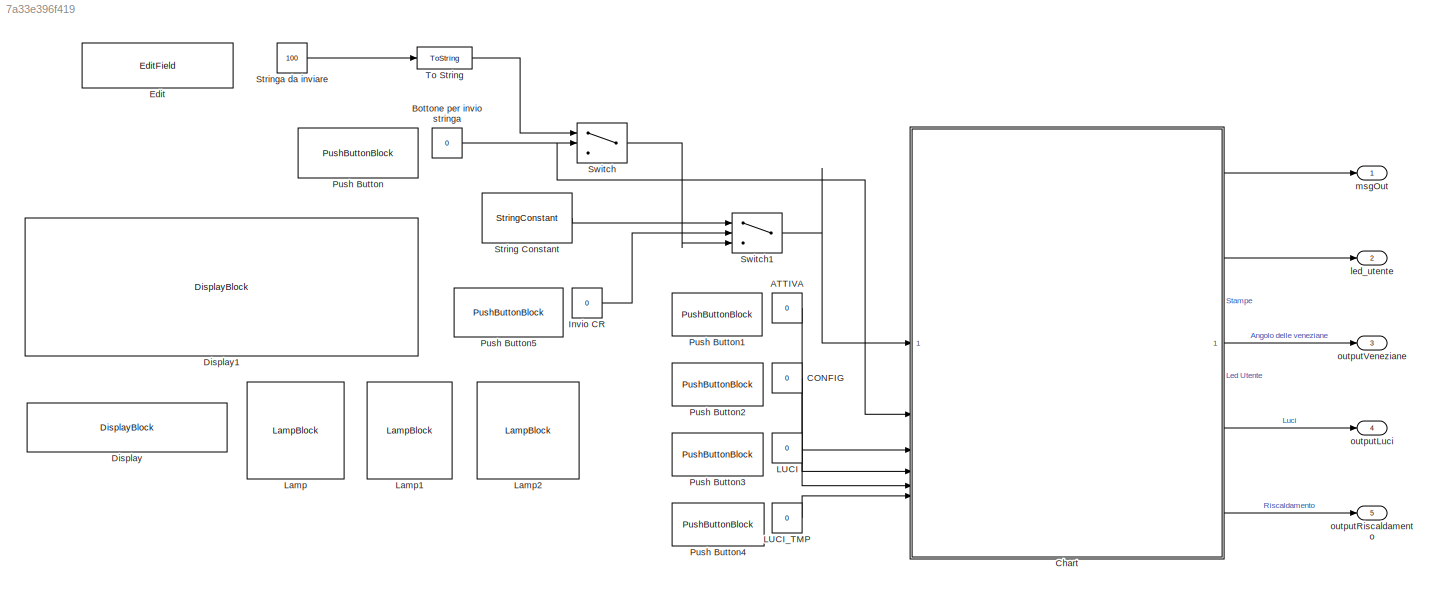
MODEL slx_7a33e396f419
KIND model
CONFIG AbsTol = auto
CONFIG EnableMultiTasking = on
CONFIG FixedStep = 0.5
CONFIG MaxStep = auto
CONFIG MinStep = auto
CONFIG RelTol = 1e-3
CONFIG SampleTimeConstraint = Unconstrained
CONFIG SolverName = FixedStepDiscrete
CONFIG StartTime = 0.0
CONFIG StopTime = 300
BLOCK [Constant] ATTIVA
  Value = 0
BLOCK [Constant] Bottone per invio stringa
  Value = 0
BLOCK [Constant] CONFIG
  Value = 0
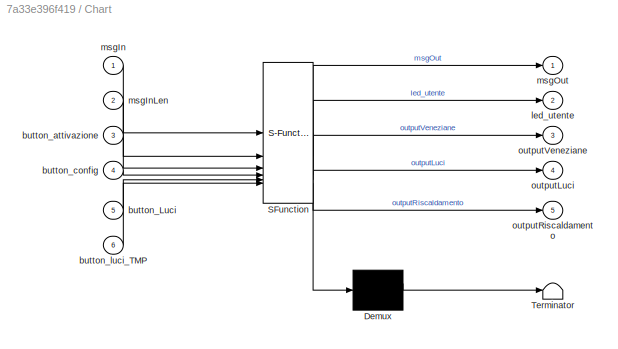
BLOCK [SubSystem] Chart
  ErrorFcn = Stateflow.Translate.translate
  PermitHierarchicalResolution = ExplicitOnly
  SFBlockType = Chart
  TreatAsAtomicUnit = on
BLOCK [Demux] Chart/ Demux 
  Outputs = 1
BLOCK [S-Function] Chart/ SFunction 
  EnableBusSupport = on
  FunctionName = sf_sfun
  PortCounts = [6 6]
  SFcnIsStateOwnerBlock = off
  SFunctionDeploymentMode = off
  Tag = Stateflow S-Function 3
BLOCK [Terminator] Chart/ Terminator 
BLOCK [Inport] Chart/button_Luci
  Port = 5
BLOCK [Inport] Chart/button_attivazione
  Port = 3
BLOCK [Inport] Chart/button_config
  Port = 4
BLOCK [Inport] Chart/button_luci_TMP
  Port = 6
BLOCK [Outport] Chart/led_utente
  Port = 2
BLOCK [Inport] Chart/msgIn
BLOCK [Inport] Chart/msgInLen
  Port = 2
BLOCK [Outport] Chart/msgOut
BLOCK [Outport] Chart/outputLuci
  Port = 4
BLOCK [Outport] Chart/outputRiscaldamento
  Port = 5
BLOCK [Outport] Chart/outputVeneziane
  Port = 3
BLOCK [DisplayBlock] Display
  LabelPosition = Bottom
  Transparency = 1
BLOCK [DisplayBlock] Display1
  Alignment = Left
  LabelPosition = Bottom
  Transparency = 1
BLOCK [EditField] Edit
  Alignment = Center
  LabelPosition = Bottom
  ShowInitialText = on
BLOCK [Constant] Invio CR
  Value = 0
BLOCK [Constant] LUCI
  Value = 0
BLOCK [Constant] LUCI_TMP
  Value = 0
BLOCK [LampBlock] Lamp
  CustomIcon = data:image/svg+xml;base64,CjwhLS0gR2VuZXJhdG9yOiB2aXNpb25jb3J0ZXggVlRyYWNlciAwLjYuNCAtLT4KPHN2ZyB2ZXJzaW9uPSIxLjEiIHhtbG5zPSJodHRwOi8vd3d3LnczLm9yZy8yMDAwL3N2ZyIgdmlld0JveD0iMCAwIDUxMiA1MTIiIHByZXNlcnZlQXNwZWN0UmF0aW89InhNaWRZTWlkIG1lZXQiPgo8cGF0aCBkPSJNMCAwIEMwLjk2NyAwLjAwMiAxLjkzNSAwLjAwNCAyLjkzMSAwLjAwNiBDMTcuMjY0IDAuMDUxIDMxLjIxIDAuNTYgNDUuMzEyIDMuMzEyIEM0Ni42NTggMy41NTQgNDYuNjU4IDMuNTU0IDQ4Lj...<+8754ch>
  Icon = Custom
  LabelPosition = Bottom
BLOCK [LampBlock] Lamp1
  CustomIcon = data:image/svg+xml;base64,CjwhLS0gR2VuZXJhdG9yOiB2aXNpb25jb3J0ZXggVlRyYWNlciAwLjYuNCAtLT4KPHN2ZyB2ZXJzaW9uPSIxLjEiIHhtbG5zPSJodHRwOi8vd3d3LnczLm9yZy8yMDAwL3N2ZyIgdmlld0JveD0iMCAwIDUxMiA1MTIiIHByZXNlcnZlQXNwZWN0UmF0aW89InhNaWRZTWlkIG1lZXQiPgo8cGF0aCBkPSJNMCAwIEMwLjY2NSAwLjE4MiAxLjMzMSAwLjM2NCAyLjAxNyAwLjU1MSBDMjQuMjc0IDYuNzU2IDQzLjIzNiAxOS40MzkgNjAgMzUgQzYwLjY1NiAzNS41NzkgNjEuMzEyIDM2LjE1OCA2MS45OD...<+12118ch>
  Icon = Custom
  LabelPosition = Bottom
BLOCK [LampBlock] Lamp2
  CustomIcon = data:image/svg+xml;base64,CjwhLS0gR2VuZXJhdG9yOiB2aXNpb25jb3J0ZXggVlRyYWNlciAwLjYuNCAtLT4KPHN2ZyB2ZXJzaW9uPSIxLjEiIHhtbG5zPSJodHRwOi8vd3d3LnczLm9yZy8yMDAwL3N2ZyIgdmlld0JveD0iMCAwIDUxMiA1MTIiIHByZXNlcnZlQXNwZWN0UmF0aW89InhNaWRZTWlkIG1lZXQiPgo8cGF0aCBkPSJNMCAwIEMxLjM2NCAwLjk4NiAyLjcyIDEuOTg1IDQuMDYyIDMgQzQuOTQ5IDMuNjE5IDUuODM2IDQuMjM3IDYuNzUgNC44NzUgQzE0LjY1MyAxMi4xMzcgMjEuMzQ5IDIzLjMwNiAyMi4yNCAzNC...<+7534ch>
  Icon = Custom
  LabelPosition = Bottom
BLOCK [PushButtonBlock] Push Button
  ButtonText = Invio Stringa
  OffValue = 0.000000
BLOCK [PushButtonBlock] Push Button1
  ButtonText = ATTIVA
  OffValue = 0.000000
BLOCK [PushButtonBlock] Push Button2
  ButtonText = CONFIG
  OffValue = 0.000000
BLOCK [PushButtonBlock] Push Button3
  ButtonText = LUCI
  OffValue = 0.000000
BLOCK [PushButtonBlock] Push Button4
  ButtonText = LUCI_TMP
  OffValue = 0.000000
BLOCK [PushButtonBlock] Push Button5
  ButtonText = Pressione Enter
  OffValue = 0.000000
BLOCK [StringConstant] String Constant
  String = sprintf('\r')
BLOCK [Constant] Stringa da inviare
  SampleTime = Inf
  Value = 100
BLOCK [Switch] Switch
  Criteria = u2 > Threshold
  InputSameDT = off
  SaturateOnIntegerOverflow = off
  Threshold = 0.5
BLOCK [Switch] Switch1
  Criteria = u2 > Threshold
  InputSameDT = off
  SaturateOnIntegerOverflow = off
  Threshold = 0.5
BLOCK [ToString] To String
BLOCK [Outport] led_utente
  Port = 2
BLOCK [Outport] msgOut
BLOCK [Outport] outputLuci
  Port = 4
BLOCK [Outport] outputRiscaldamento
  Port = 5
BLOCK [Outport] outputVeneziane
  Port = 3
LINE ATTIVA:1 -> Chart:3
NET Bottone per invio stringa:1 -> Chart:2, Switch:2
LINE CONFIG:1 -> Chart:4
LINE Chart:1 -> msgOut:1
LINE Chart:2 -> led_utente:1
LINE Chart:3 -> outputVeneziane:1
LINE Chart:4 -> outputLuci:1
LINE Chart:5 -> outputRiscaldamento:1
LINE Invio CR:1 -> Switch1:2
LINE LUCI:1 -> Chart:5
LINE LUCI_TMP:1 -> Chart:6
LINE String Constant:1 -> Switch1:1
LINE Stringa da inviare:1 -> To String:1
LINE Switch1:1 -> Chart:1
LINE Switch:1 -> Switch1:3
LINE To String:1 -> Switch:1
note: NET lines group one-source signal fan-out (src -> all destinations, sorted); 1:1 wires keep LINE
CHART Chart states=64 transitions=106
  STATE_LABEL 'outString = msgConfigurazione'
  STATE_LABEL 'SCRIPT:\nfunction outString = msgConfigurazione\n%clrscr = sprintf("\\033[0;0H\\033[2J"); Solo per UART\ncrlf = sprintf(\'<path>');\n\noutString = "Configurazione:" + crlf + ...\n    "1. Regolazione veneziane." + crlf + ...\n    "2. Accensione luci." + crlf + ...\n    "3. Configurazione riscaldamento." + crlf + ...\n    "4. Salva." + crlf + ...;\n    "5. Esci." + crlf;\nend\n\n\n \n'
  STATE_LABEL 'outString = msgRegolazioneVeneziane'
  STATE_LABEL 'SCRIPT:\nfunction outString = msgRegolazioneVeneziane\n%clrscr = sprintf("\\033[0;0H\\033[2J"); Solo per UART\ncrlf = sprintf(\'<path>');\n\noutString = "Regolazione Veneziane." + crlf + ...\n   "Inserire un valore da 0 a 180." + crlf + ...\n   "(Risoluzione di 20)" + crlf;\nend\n\n\n \n'
  STATE_LABEL 'outString = msgAccensioneLuci'
  STATE_LABEL 'SCRIPT:\nfunction outString = msgAccensioneLuci\n%clrscr = sprintf("\\033[0;0H\\033[2J"); Solo per UART\ncrlf = sprintf(\'<path>');\n\noutString = "Configurazione luci." + crlf + ...\n    "Inserire:" + crlf + ...\n    "1. Luci accese." + crlf + ...\n    "2. Luci spente." + crlf;\nend\n\n\n \n'
  STATE_LABEL 'outString = msgConfigurazioneRiscaldamento'
  STATE_LABEL 'SCRIPT:\nfunction outString = msgConfigurazioneRiscaldamento\n%clrscr = sprintf("\\033[0;0H\\033[2J"); Solo per UART\ncrlf = sprintf(\'<path>');\n\noutString = "Configurazione riscaldamento." + crlf + ...\n    "Inserire un valore compreso tra 16 e 30." + crlf + ...\n    "(Risoluzione di 1)" + crlf;\nend\n\n\n \n'
  STATE_LABEL 'outString = msgErroreUscita'
  STATE_LABEL 'SCRIPT:\nfunction outString = msgErroreUscita\n%clrscr = sprintf("\\033[0;0H\\033[2J"); Solo per UART\ncrlf = sprintf(\'<path>');\n\noutString = "Configurazione valida non presente." + crlf + ...\n            "Si prega di inserirne una." + crlf;\nend\n\n\n \n'
  STATE_LABEL 'outString = msgAggiornamentoStato(val_riscaldamento, val_veneziane, val_luci, val_temporizzazione)'
  STATE_LABEL 'SCRIPT:\nfunction outString = msgAggiornamentoStato(val_riscaldamento, val_veneziane, val_luci, val_temporizzazione)\n%clrscr = sprintf("\\033[0;0H\\033[2J"); Solo per UART\n    crlf = sprintf(\'<path>');\n\n    str_veneziane = "Veneziane impostate a " + sprintf(\'%.1f\', val_veneziane) + " gradi.";\n\n    str_luci = "";\n    if val_luci == 1 || val_luci == 3\n        str_luci = "Luci accese.";\n    else\n        s...<+552ch>'
  STATE_LABEL 'outString = msgUscita'
  STATE_LABEL 'SCRIPT:\nfunction outString = msgUscita\n%clrscr = sprintf("\\033[0;0H\\033[2J"); Solo per UART\ncrlf = sprintf(\'<path>');\n\noutString = "Uscita in corso." + crlf + ...\n            "Verranno ripristinate le configurazioni precedenti." + crlf;\nend\n\n\n \n'
  STATE_LABEL 'outString = msgErrore'
  STATE_LABEL 'SCRIPT:\nfunction outString = msgErrore\n%clrscr = sprintf("\\033[0;0H\\033[2J"); Solo per UART\ncrlf = sprintf(\'<path>');\n\noutString = "Valore inserito non valido." + crlf;\nend\n\n\n \n'
  STATE_LABEL 'outString = msgSalvataggioConfigurazione'
  STATE_LABEL 'SCRIPT:\nfunction outString = msgSalvataggioConfigurazione\n%clrscr = sprintf("\\033[0;0H\\033[2J"); Solo per UART\ncrlf = sprintf(\'<path>');\n\noutString = "Configurazione salvata con successo." + crlf;\nend\n\n\n \n'
  STATE_LABEL 'outString = msgConfigurazioneTemporizzazione'
  STATE_LABEL 'SCRIPT:\nfunction outString = msgConfigurazioneTemporizzazione\n%clrscr = sprintf("\\033[0;0H\\033[2J"); Solo per UART\ncrlf = sprintf(\'<path>');\n\noutString = "Configurazione temporizzazione luci." + crlf + ...\n    "Inserire un valore compreso tra 5 e 30." + crlf + ...\n    "Inserire 0 per disattivarla." + crlf;\nend\n\n\n \n'
  STATE_LABEL 'result = checkValoreRiscaldamento(str)'
  STATE_LABEL "SCRIPT:\nfunction result = checkValoreRiscaldamento(str)\n\n    num = 0;\n    str = char(str);\n    for i = 1:length(str)\n        if str(i) == ' '\n            break;\n        end\n        d = double(str(i)) - 48;\n        if d < 0 || d > 9\n            result = false;\n            return;\n        end\n        num = num * 10 + d;\n    end\n\n    % Verifica validità del numero e range\n    result = ~isnan(num) && ...<+52ch>"
  STATE_LABEL 'result = checkValoreTemporizzazione(str)'
  STATE_LABEL "SCRIPT:\nfunction result = checkValoreTemporizzazione(str)\n  \n    num = 0;\n    str = char(str);\n    isFraction = false;\n    fractionDivisor = 1;\n\n    for i = 1:length(str)\n        ch = str(i);\n        \n        if ch == ' '\n            break; \n        elseif ch == '.'\n            if isFraction\n                result = false;\n                return;\n            end\n            isFraction = true;\n    ...<+459ch>"
  STATE_LABEL 'result = checkValoreVeneziane(str)'
  STATE_LABEL "SCRIPT:\nfunction result = checkValoreVeneziane(str)\n    \n    num = 0;\n    str = char(str);\n    for i = 1:length(str)\n        if str(i) == ' '\n            break;\n        end\n        d = double(str(i)) - 48;\n        if d < 0 || d > 9\n            result = false;\n            return;\n        end\n        num = num * 10 + d;\n    end\n\n    % Verifica validità del numero e range\n    result = ~isnan(num) && ...<+58ch>"
  STATE_LABEL 'outRange = rangeRiscaldamento(val)'
  STATE_LABEL 'SCRIPT:\nfunction outRange = rangeRiscaldamento(val)\n\n    if val >= 16 && val <= 18\n            outRange = 0;\n    elseif val >= 19 && val <= 21\n            outRange = 1;\n    elseif val >= 22 && val <= 24\n            outRange = 2;\n    elseif val >= 25 && val <= 27\n            outRange = 3;\n    elseif val >= 28 && val <= 30\n            outRange = 4;\n    else \n        outRange = -1\n    end\n\nend\n'
  STATE_LABEL 'val = convertitore(str)'
  STATE_LABEL "SCRIPT:\nfunction val = convertitore(str)\n\n    num = 0;\n    str = char(str);\n    isFraction = false;\n    fractionDivisor = 1;\n\n    for i = 1:length(str)\n        ch = str(i);\n        \n        if ch == ' '\n            break; \n        elseif ch == '.'\n            if isFraction\n                val = -1;\n                return;\n            end\n            isFraction = true;\n            continue;\n       ...<+330ch>"
  STATE_LABEL 'Inizializzazione'
  STATE_LABEL 'Stato_Attivo'
  STATE_LABEL 'Gestore_logica'
  STATE_LABEL 'Stato_Operativo\n'
  STATE_LABEL 'Imposta_parametri'
  STATE_LABEL 'Imposta_output\nen: outputVeneziane = veneziane;\n outputRiscaldamento = rangeRiscaldamento(riscaldamento);\n'
  STATE_LABEL 'Accendi_luci\nen: outputLuci = ON;'
  STATE_LABEL 'Spegni_luci\nen: luci = 2;\n outputLuci = OFF;'
  STATE_LABEL '[luci == 1]'
  STATE_LABEL '{veneziane = valoreVeneziane;\nriscaldamento = valoreRiscaldamento;\nluci = modLuci;\ntempo = valoreTemporizzazione;}'
CHART  states=0 transitions=0
note: 10 file-system paths scrubbed to <path> (not preserved elsewhere — flat text is the only slx artifact)
